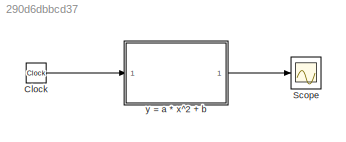
MODEL slx_290d6dbbcd37
KIND model
BLOCK [Clock] Clock
BLOCK [Scope] Scope
  DataFormat = StructureWithTime
  Floating = off
  NumInputPorts = 1
  Ports = [1]
  SampleTime = 0
  ShowLegends = off
  YMax = -2.56095e+10
  YMin = -2.56128e+10
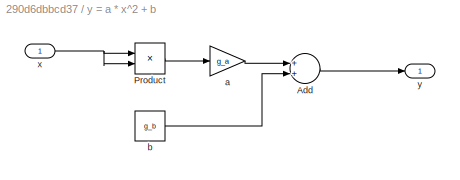
BLOCK [SubSystem] y = a * x^2 + b
  FunctionWithSeparateData = off
  MaskHideContents = off
  MinAlgLoopOccurrences = off
  Opaque = off
  Ports = [1, 1]
  PropExecContextOutsideSubsystem = off
  RTWSystemCode = Auto
  RequestExecContextInheritance = off
BLOCK [Sum] y = a * x^2 + b/Add
  InputSameDT = off
  OutDataTypeStr = Inherit: Inherit via internal rule
  Ports = [2, 1]
  SaturateOnIntegerOverflow = off
BLOCK [Product] y = a * x^2 + b/Product
  InputSameDT = off
  OutDataTypeStr = Inherit: Inherit via internal rule
  Ports = [2, 1]
  RndMeth = Floor
  SaturateOnIntegerOverflow = off
BLOCK [Gain] y = a * x^2 + b/a
  Gain = g_a
  OutDataTypeStr = Inherit: Inherit via internal rule
  ParamDataTypeStr = Inherit: Inherit via internal rule
  SaturateOnIntegerOverflow = off
BLOCK [Constant] y = a * x^2 + b/b
  Value = g_b
BLOCK [Inport] y = a * x^2 + b/x
  IconDisplay = Port number
BLOCK [Outport] y = a * x^2 + b/y
  IconDisplay = Port number
LINE Clock:1 -> y = a * x^2 + b:1
LINE y = a * x^2 + b/Add:1 -> y = a * x^2 + b/y:1
LINE y = a * x^2 + b/Product:1 -> y = a * x^2 + b/a:1
LINE y = a * x^2 + b/a:1 -> y = a * x^2 + b/Add:1
LINE y = a * x^2 + b/b:1 -> y = a * x^2 + b/Add:2
NET y = a * x^2 + b/x:1 -> y = a * x^2 + b/Product:1, y = a * x^2 + b/Product:2
LINE y = a * x^2 + b:1 -> Scope:1
note: NET lines group one-source signal fan-out (src -> all destinations, sorted); 1:1 wires keep LINE
